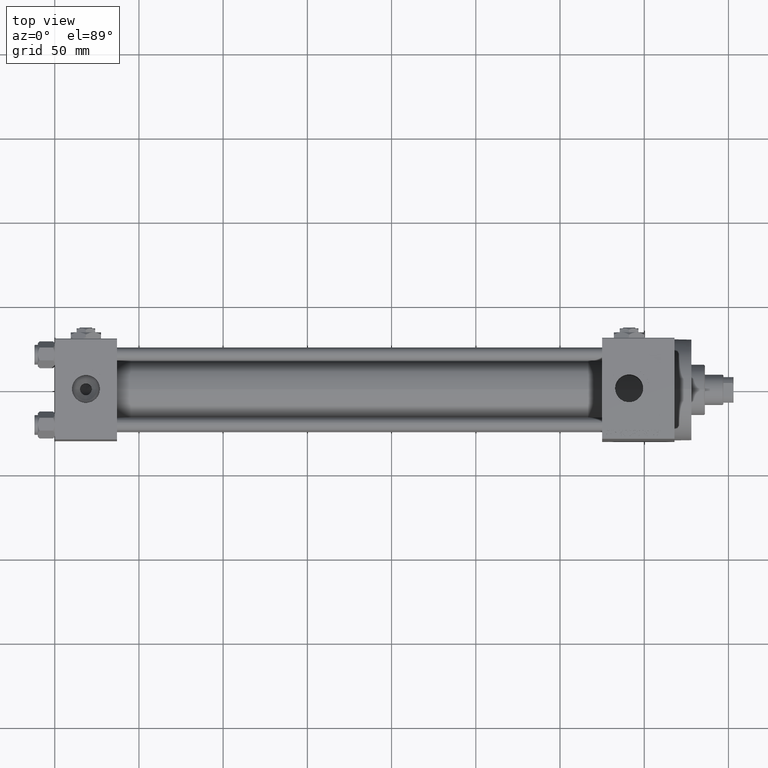
[diagram: clean part render]
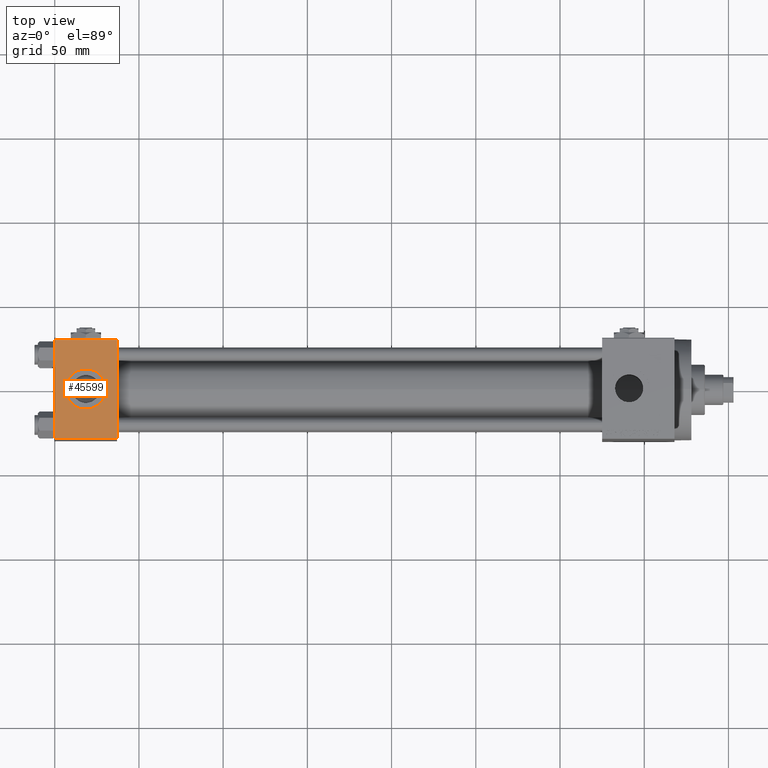
[diagram: same view with one face highlighted and labeled with its STEP entity id]
A machine part, top view. The second image highlights one B-rep face of the part: STEP entity #45599.
In plain terms, the highlighted planar face has unit normal (0, 0, -1).
Its self-contained STEP definition (entity closure, byte-faithful):
#71 = CARTESIAN_POINT ( 'NONE',  ( 0.000000000000000000, 29.49999999999999289, 30.00000000000000000 ) ) ;
#395 = CARTESIAN_POINT ( 'NONE',  ( 0.000000000000000000, 29.49999999999999289, 30.00000000000000000 ) ) ;
#623 = AXIS2_PLACEMENT_3D ( 'NONE', #16635, #5430, #8914 ) ;
#1202 = FACE_BOUND ( 'NONE', #15092, .T. ) ;
#1424 = VERTEX_POINT ( 'NONE', #10250 ) ;
#2105 = EDGE_CURVE ( 'NONE', #44589, #10268, #22198, .T. ) ;
#3260 = DIRECTION ( 'NONE',  ( 0.000000000000000000, -1.000000000000000000, -1.156482317317871725E-16 ) ) ;
#3494 = DIRECTION ( 'NONE',  ( 1.000000000000000000, 0.000000000000000000, 0.000000000000000000 ) ) ;
#3820 = ORIENTED_EDGE ( 'NONE', *, *, #2105, .T. ) ;
#4179 = EDGE_CURVE ( 'NONE', #17840, #1424, #40918, .T. ) ;
#5430 = DIRECTION ( 'NONE',  ( 0.000000000000000000, 1.156482317317871725E-16, -1.000000000000000000 ) ) ;
#5475 = VECTOR ( 'NONE', #34242, 1000.000000000000000 ) ;
#6160 = PLANE ( 'NONE',  #623 ) ;
#6188 = EDGE_LOOP ( 'NONE', ( #3820, #14916, #41515, #29361 ) ) ;
#6682 = CARTESIAN_POINT ( 'NONE',  ( 18.50000000000000000, -3.469446951953614978E-15, 29.99999999999999645 ) ) ;
#6684 = ORIENTED_EDGE ( 'NONE', *, *, #4179, .F. ) ;
#7233 = CARTESIAN_POINT ( 'NONE',  ( 37.00000000000000000, -29.50000000000000000, 29.99999999999999289 ) ) ;
#7393 = EDGE_CURVE ( 'NONE', #34225, #44589, #19755, .T. ) ;
#8914 = DIRECTION ( 'NONE',  ( 0.000000000000000000, 1.000000000000000000, 1.156482317317871725E-16 ) ) ;
#9061 = AXIS2_PLACEMENT_3D ( 'NONE', #10944, #26137, #29138 ) ;
#10250 = CARTESIAN_POINT ( 'NONE',  ( 30.50000000000000000, -3.469446951953614978E-15, 29.99999999999999645 ) ) ;
#10268 = VERTEX_POINT ( 'NONE', #42915 ) ;
#10944 = CARTESIAN_POINT ( 'NONE',  ( 18.50000000000000000, -3.469446951953614978E-15, 29.99999999999999645 ) ) ;
#14916 = ORIENTED_EDGE ( 'NONE', *, *, #48076, .T. ) ;
#15092 = EDGE_LOOP ( 'NONE', ( #37835, #6684 ) ) ;
#16256 = AXIS2_PLACEMENT_3D ( 'NONE', #6682, #28869, #36616 ) ;
#16635 = CARTESIAN_POINT ( 'NONE',  ( 37.00000000000000000, 29.99999999999999289, 30.00000000000000000 ) ) ;
#17840 = VERTEX_POINT ( 'NONE', #18596 ) ;
#18596 = CARTESIAN_POINT ( 'NONE',  ( 6.499999999999997335, -1.999870792976790833E-15, 29.99999999999999645 ) ) ;
#18631 = DIRECTION ( 'NONE',  ( 0.000000000000000000, -1.000000000000000000, -1.156482317317871725E-16 ) ) ;
#19755 = LINE ( 'NONE', #71, #5475 ) ;
#22198 = LINE ( 'NONE', #41156, #36199 ) ;
#22614 = LINE ( 'NONE', #37839, #31713 ) ;
#23779 = VECTOR ( 'NONE', #3494, 1000.000000000000000 ) ;
#23804 = EDGE_CURVE ( 'NONE', #1424, #17840, #28192, .T. ) ;
#26137 = DIRECTION ( 'NONE',  ( 0.000000000000000000, 0.000000000000000000, 1.000000000000000000 ) ) ;
#27792 = CARTESIAN_POINT ( 'NONE',  ( 37.00000000000000000, 29.49999999999999289, 30.00000000000000000 ) ) ;
#28192 = CIRCLE ( 'NONE', #16256, 12.00000000000000000 ) ;
#28359 = FACE_OUTER_BOUND ( 'NONE', #6188, .T. ) ;
#28869 = DIRECTION ( 'NONE',  ( 0.000000000000000000, 0.000000000000000000, 1.000000000000000000 ) ) ;
#29138 = DIRECTION ( 'NONE',  ( 1.000000000000000000, 0.000000000000000000, 0.000000000000000000 ) ) ;
#29361 = ORIENTED_EDGE ( 'NONE', *, *, #7393, .T. ) ;
#31713 = VECTOR ( 'NONE', #18631, 1000.000000000000000 ) ;
#33571 = VERTEX_POINT ( 'NONE', #45396 ) ;
#34225 = VERTEX_POINT ( 'NONE', #27792 ) ;
#34242 = DIRECTION ( 'NONE',  ( -1.000000000000000000, 0.000000000000000000, 0.000000000000000000 ) ) ;
#36199 = VECTOR ( 'NONE', #3260, 1000.000000000000000 ) ;
#36616 = DIRECTION ( 'NONE',  ( 1.000000000000000000, 0.000000000000000000, 0.000000000000000000 ) ) ;
#37835 = ORIENTED_EDGE ( 'NONE', *, *, #23804, .F. ) ;
#37839 = CARTESIAN_POINT ( 'NONE',  ( 37.00000000000000000, 29.99999999999999289, 30.00000000000000000 ) ) ;
#40918 = CIRCLE ( 'NONE', #9061, 12.00000000000000000 ) ;
#41156 = CARTESIAN_POINT ( 'NONE',  ( 0.000000000000000000, 29.99999999999999289, 30.00000000000000000 ) ) ;
#41392 = LINE ( 'NONE', #7233, #23779 ) ;
#41515 = ORIENTED_EDGE ( 'NONE', *, *, #48325, .F. ) ;
#42915 = CARTESIAN_POINT ( 'NONE',  ( 0.000000000000000000, -29.49999999999998579, 29.99999999999999289 ) ) ;
#44589 = VERTEX_POINT ( 'NONE', #395 ) ;
#45396 = CARTESIAN_POINT ( 'NONE',  ( 37.00000000000000000, -29.49999999999998579, 29.99999999999999289 ) ) ;
#45599 = ADVANCED_FACE ( 'NONE', ( #1202, #28359 ), #6160, .F. ) ;
#48076 = EDGE_CURVE ( 'NONE', #10268, #33571, #41392, .T. ) ;
#48325 = EDGE_CURVE ( 'NONE', #34225, #33571, #22614, .T. ) ;